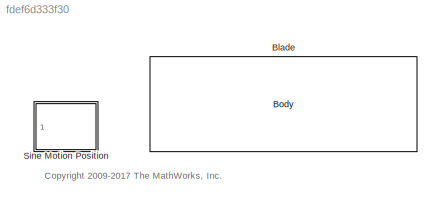
MODEL slx_fdef6d333f30
KIND library
CONFIG AbsTol = auto
CONFIG EnableMultiTasking = on
CONFIG FixedStep = auto
CONFIG MaxStep = auto
CONFIG MinStep = auto
CONFIG RelTol = 1e-3
CONFIG SampleTimeConstraint = Unconstrained
CONFIG Solver = ode45
CONFIG SolverName = ode45
CONFIG StartTime = 0.0
CONFIG StopTime = 10.0
BLOCK [Reference] Blade  REF=mblibv1/Bodies/Body
  Ports = [0, 0, 0, 0, 0, 4, 1]
  SourceBlock = mblibv1/Bodies/Body
  SourceProductBaseCode = MS
  SourceProductName = Simscape Multibody
  SourceType = Body
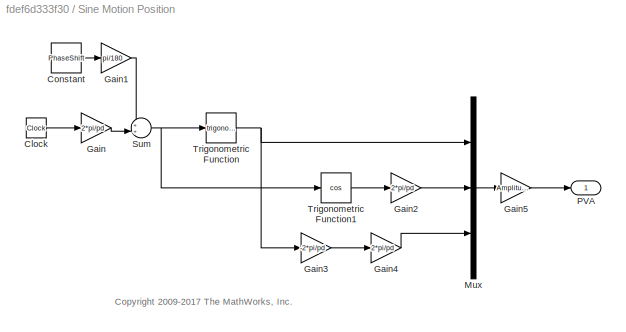
BLOCK [SubSystem] Sine Motion Position
  Ports = [0, 1]
  RequestExecContextInheritance = off
  Variant = off
BLOCK [Clock] Sine Motion Position/Clock
BLOCK [Constant] Sine Motion Position/Constant
  Value = PhaseShift
BLOCK [Gain] Sine Motion Position/Gain
  Gain = 2*pi/pd
  OutDataTypeStr = Inherit: Inherit via internal rule
  ParamDataTypeStr = Inherit: Inherit via internal rule
  SaturateOnIntegerOverflow = off
BLOCK [Gain] Sine Motion Position/Gain1
  Gain = pi/180
  OutDataTypeStr = Inherit: Inherit via internal rule
  ParamDataTypeStr = Inherit: Inherit via internal rule
  SaturateOnIntegerOverflow = off
BLOCK [Gain] Sine Motion Position/Gain2
  Gain = 2*pi/pd
  OutDataTypeStr = Inherit: Inherit via internal rule
  ParamDataTypeStr = Inherit: Inherit via internal rule
  SaturateOnIntegerOverflow = off
BLOCK [Gain] Sine Motion Position/Gain3
  Gain = -2*pi/pd
  OutDataTypeStr = Inherit: Inherit via internal rule
  ParamDataTypeStr = Inherit: Inherit via internal rule
  SaturateOnIntegerOverflow = off
BLOCK [Gain] Sine Motion Position/Gain4
  Gain = 2*pi/pd
  OutDataTypeStr = Inherit: Inherit via internal rule
  ParamDataTypeStr = Inherit: Inherit via internal rule
  SaturateOnIntegerOverflow = off
BLOCK [Gain] Sine Motion Position/Gain5
  Gain = Amplitude
  OutDataTypeStr = Inherit: Inherit via internal rule
  ParamDataTypeStr = Inherit: Inherit via internal rule
  SaturateOnIntegerOverflow = off
BLOCK [Mux] Sine Motion Position/Mux
  DisplayOption = bar
  Inputs = 3
  Ports = [3, 1]
BLOCK [Outport] Sine Motion Position/PVA
  IconDisplay = Port number
BLOCK [Sum] Sine Motion Position/Sum
  IconShape = round
  InputSameDT = off
  Inputs = ++|
  OutDataTypeStr = Inherit: Inherit via internal rule
  Ports = [2, 1]
  SaturateOnIntegerOverflow = off
BLOCK [Trigonometry] Sine Motion Position/Trigonometric Function
  Ports = [1, 1]
BLOCK [Trigonometry] Sine Motion Position/Trigonometric Function1
  Operator = cos
  Ports = [1, 1]
ANNOTATION (root): <copyright redacted>
ANNOTATION Sine Motion Position: <copyright redacted>
LINE Sine Motion Position/Clock:1 -> Sine Motion Position/Gain:1
LINE Sine Motion Position/Constant:1 -> Sine Motion Position/Gain1:1
LINE Sine Motion Position/Gain1:1 -> Sine Motion Position/Sum:1
LINE Sine Motion Position/Gain2:1 -> Sine Motion Position/Mux:2
LINE Sine Motion Position/Gain3:1 -> Sine Motion Position/Gain4:1
LINE Sine Motion Position/Gain4:1 -> Sine Motion Position/Mux:3
LINE Sine Motion Position/Gain5:1 -> Sine Motion Position/PVA:1
LINE Sine Motion Position/Gain:1 -> Sine Motion Position/Sum:2
LINE Sine Motion Position/Mux:1 -> Sine Motion Position/Gain5:1
NET Sine Motion Position/Sum:1 -> Sine Motion Position/Trigonometric Function1:1, Sine Motion Position/Trigonometric Function:1
LINE Sine Motion Position/Trigonometric Function1:1 -> Sine Motion Position/Gain2:1
NET Sine Motion Position/Trigonometric Function:1 -> Sine Motion Position/Gain3:1, Sine Motion Position/Mux:1
note: NET lines group one-source signal fan-out (src -> all destinations, sorted); 1:1 wires keep LINE
